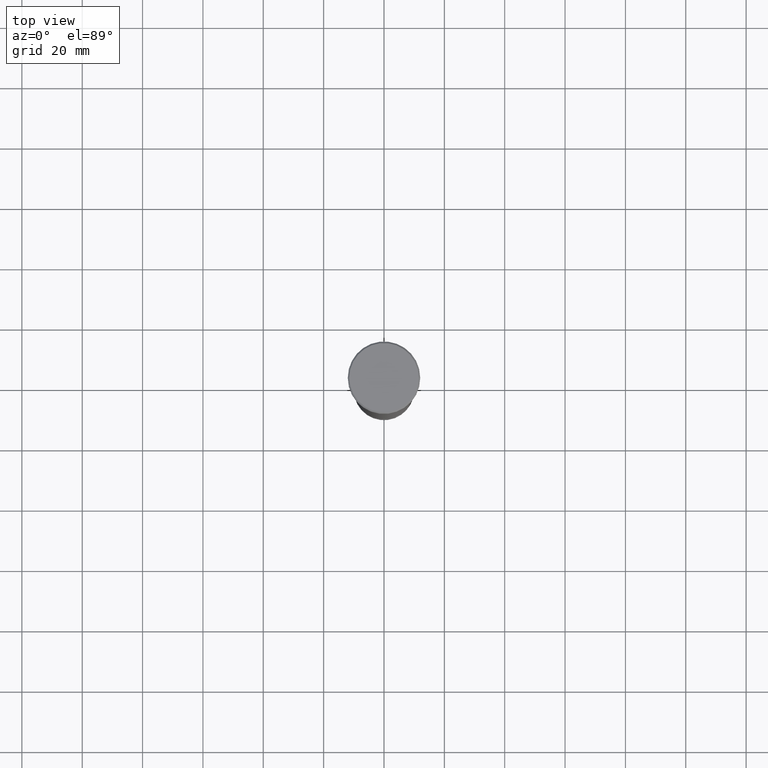
[diagram: clean part render]
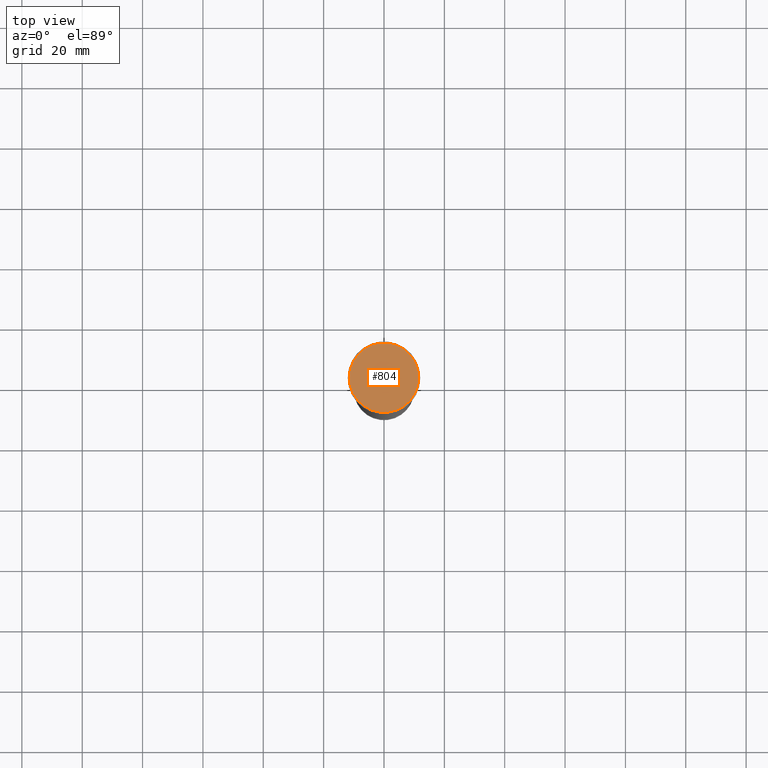
[diagram: same view with one face highlighted and labeled with its STEP entity id]
A machine part, top view. The second image highlights one B-rep face of the part: STEP entity #804.
In plain terms, the highlighted planar face has unit normal (0, -0, 1).
Its self-contained STEP definition (entity closure, byte-faithful):
#41 = DIRECTION ( 'NONE',  ( 1.000000000000000000, 0.000000000000000000, 0.000000000000000000 ) ) ;
#77 = ORIENTED_EDGE ( 'NONE', *, *, #638, .T. ) ;
#134 = DIRECTION ( 'NONE',  ( -0.000000000000000000, -0.000000000000000000, 1.000000000000000000 ) ) ;
#158 = AXIS2_PLACEMENT_3D ( 'NONE', #800, #134, #463 ) ;
#182 = CARTESIAN_POINT ( 'NONE',  ( 11.50000000000000888, 1.438959988998140752E-15, 0.000000000000000000 ) ) ;
#234 = EDGE_CURVE ( 'NONE', #971, #560, #546, .T. ) ;
#240 = ORIENTED_EDGE ( 'NONE', *, *, #234, .T. ) ;
#246 = PLANE ( 'NONE',  #472 ) ;
#249 = CARTESIAN_POINT ( 'NONE',  ( 0.000000000000000000, 0.000000000000000000, 0.000000000000000000 ) ) ;
#368 = CARTESIAN_POINT ( 'NONE',  ( -11.50000000000000888, 0.000000000000000000, 0.000000000000000000 ) ) ;
#463 = DIRECTION ( 'NONE',  ( 1.000000000000000000, 0.000000000000000000, 0.000000000000000000 ) ) ;
#472 = AXIS2_PLACEMENT_3D ( 'NONE', #249, #830, #573 ) ;
#500 = FACE_OUTER_BOUND ( 'NONE', #655, .T. ) ;
#546 = CIRCLE ( 'NONE', #158, 11.50000000000000888 ) ;
#560 = VERTEX_POINT ( 'NONE', #368 ) ;
#573 = DIRECTION ( 'NONE',  ( 1.000000000000000000, 0.000000000000000000, 0.000000000000000000 ) ) ;
#590 = AXIS2_PLACEMENT_3D ( 'NONE', #865, #706, #41 ) ;
#638 = EDGE_CURVE ( 'NONE', #560, #971, #1056, .T. ) ;
#655 = EDGE_LOOP ( 'NONE', ( #77, #240 ) ) ;
#706 = DIRECTION ( 'NONE',  ( -0.000000000000000000, -0.000000000000000000, 1.000000000000000000 ) ) ;
#800 = CARTESIAN_POINT ( 'NONE',  ( 0.000000000000000000, 0.000000000000000000, 0.000000000000000000 ) ) ;
#804 = ADVANCED_FACE ( 'NONE', ( #500 ), #246, .T. ) ;
#830 = DIRECTION ( 'NONE',  ( 0.000000000000000000, -0.000000000000000000, 1.000000000000000000 ) ) ;
#865 = CARTESIAN_POINT ( 'NONE',  ( 0.000000000000000000, 0.000000000000000000, 0.000000000000000000 ) ) ;
#971 = VERTEX_POINT ( 'NONE', #182 ) ;
#1056 = CIRCLE ( 'NONE', #590, 11.50000000000000888 ) ;